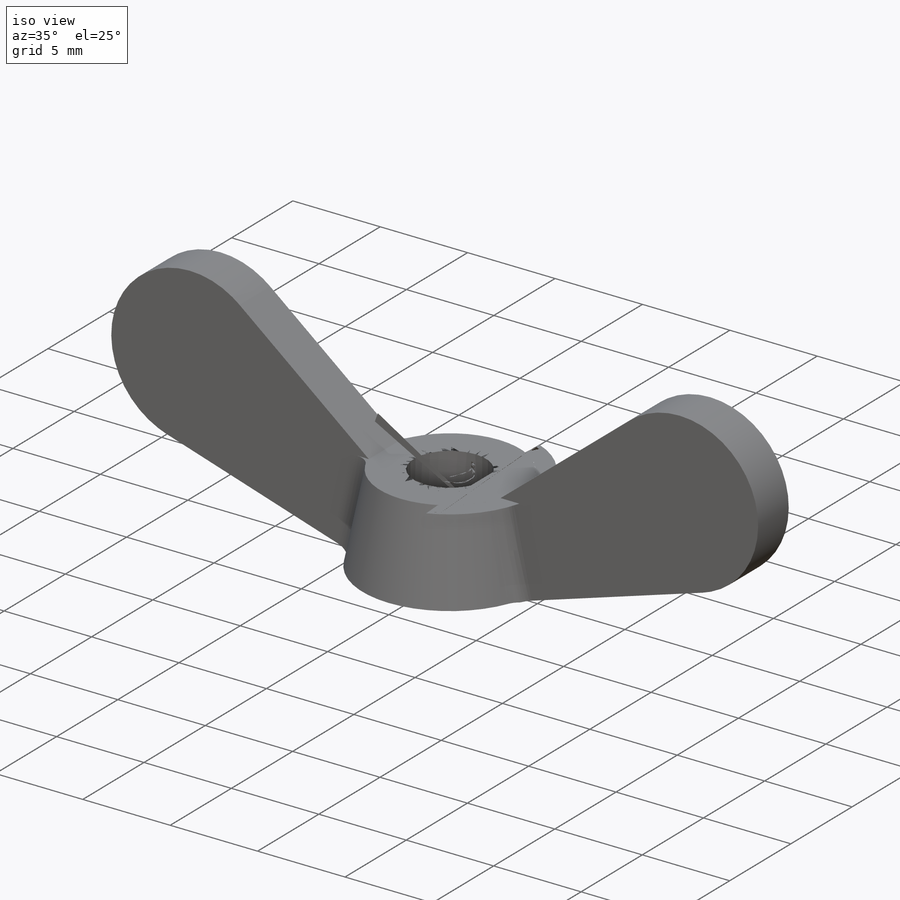
[diagram: iso view]
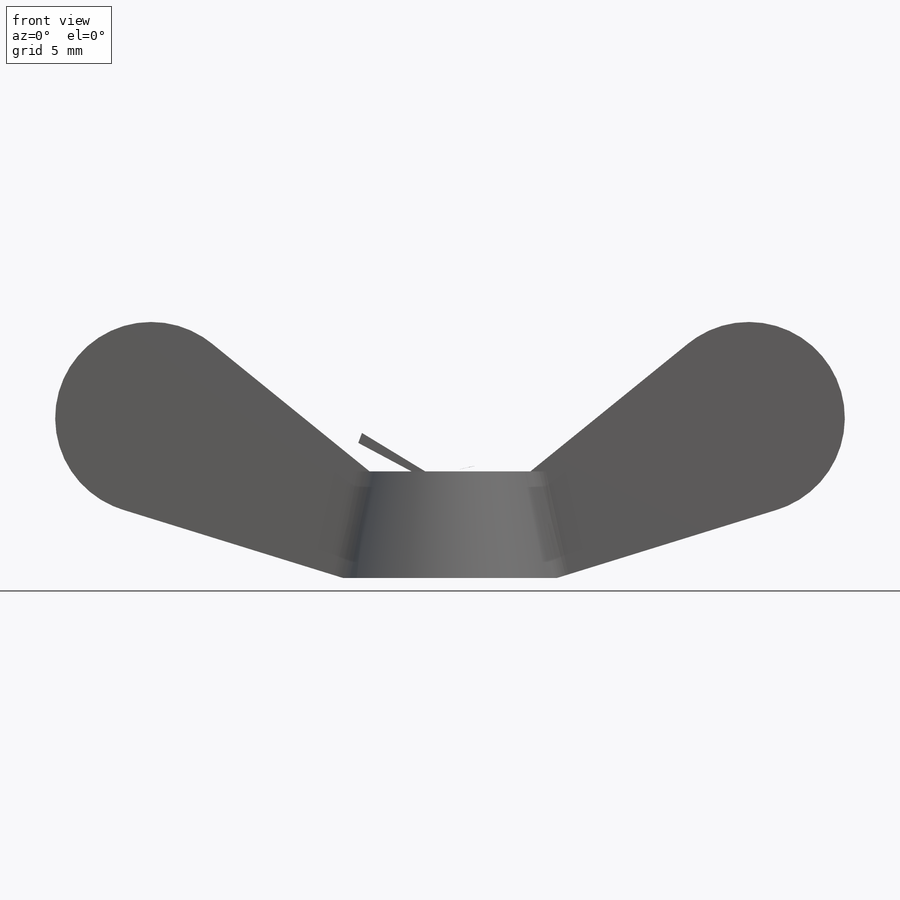
[diagram: front view]
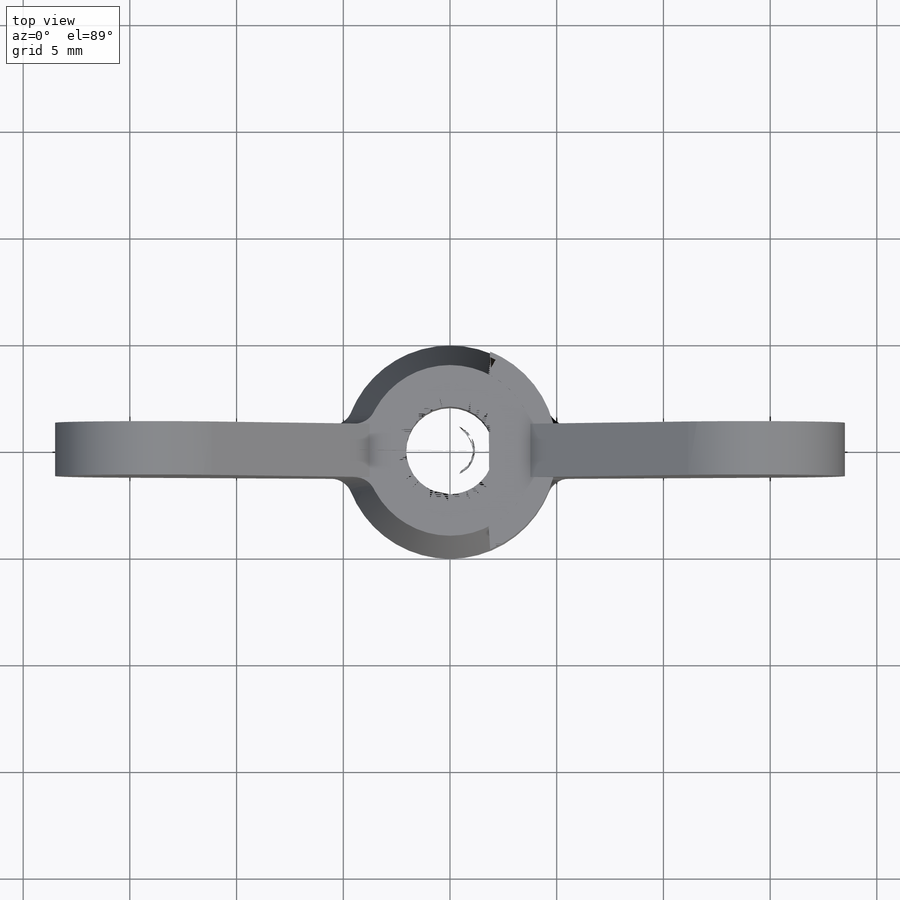
[diagram: top view]
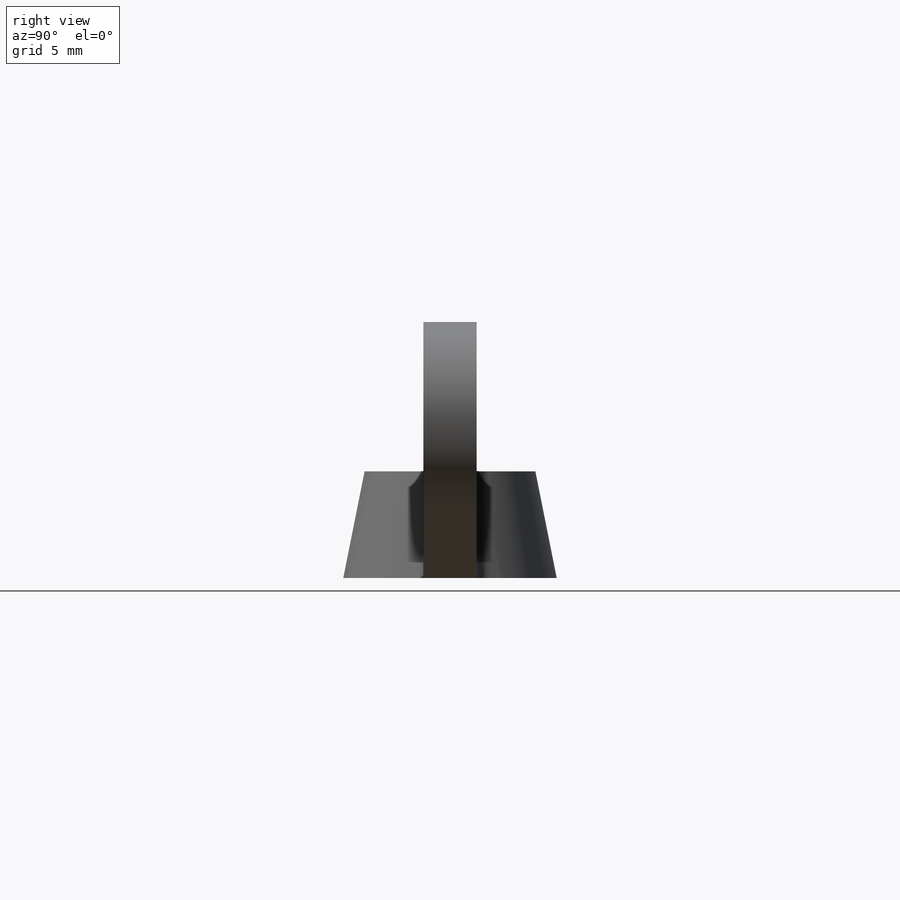
[diagram: right view]
SOLIDWORKS PART (.sldprt)
format: sldprt  version: not decoded by parser v0  size: 335,872 bytes
history: native  units: mm
features: plane x5, sketch x5, material x1, revolve x1, extrude x1, mirror x1, fillet x1, cut_extrude x1, thread x1, chamfer x1 (+9 scaffold rows collapsed)
feature tree (27):
  scaffold x9  (default folders/planes/origin — collapsed)
  material  "Сталь"
  plane  "Спереди"
  plane  "Сверху"
  plane  "Справа"
  sketch  "Эскиз1"  dims[c1.D4=9.0mm c1.D5=9.0mm c1.D1=8.0mm c1.D2=10.0mm c1.D3=5.0mm c2.D5=12.0mm c2.D6=28.0mm c2.D7=2.4mm]
  plane  "Плоскость1"
  plane  "Плоскость2"
  sketch  "Эскиз3"  dims[D1=2.5mm]
  sketch  "Эскиз4"  dims[D1=2.5mm]
  revolve  "Повернуть2"  Angle=360deg
  extrude  "Boss-Extrude1"  [1 undecoded]
  sketch  "Эскиз1<3>"
  mirror  "Mirror1"
  fillet  "Fillet1"  Radius=1mm
  sketch  "Sketch1"  dims[D1=4.11mm]
  cut_extrude  "Cut-Extrude1"  [1 undecoded]
  thread  "Cosmetic Thread1"  Diameter=5mm  [1 undecoded]
  chamfer  "Chamfer1"  Distance=0.445mm Angle=45deg
decode coverage: 8 of 12 modeling features carry decoded parameters
note: 3 parameter values undecoded
note: suppression state not decoded; provenance and decode notes live in map.json
